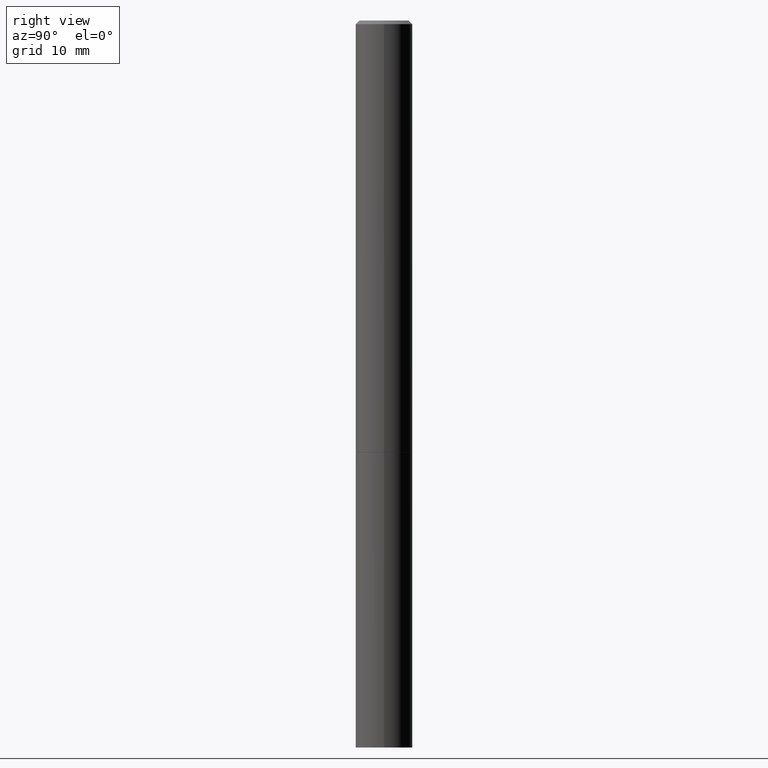
[diagram: clean part render]
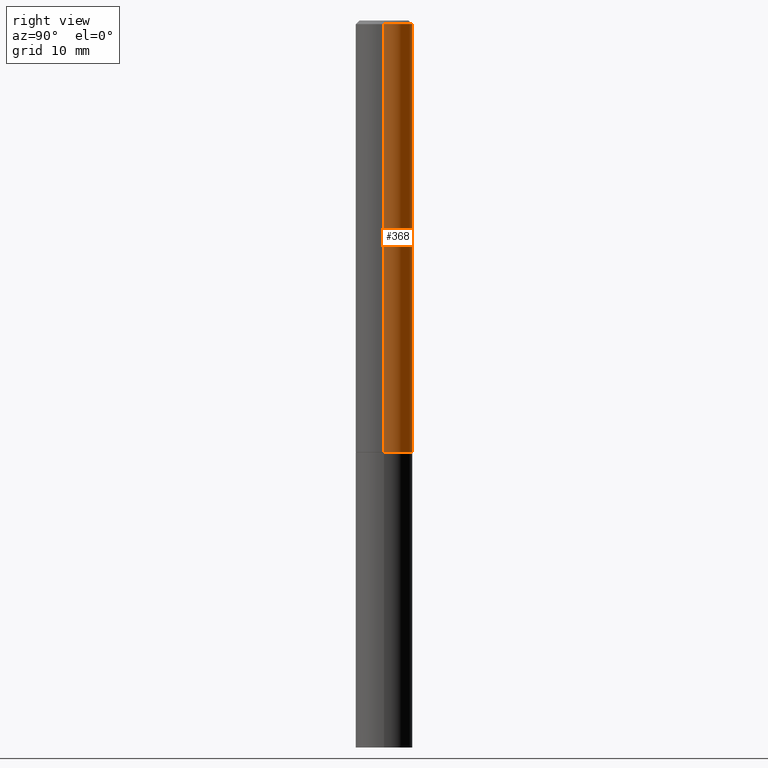
[diagram: same view with one face highlighted and labeled with its STEP entity id]
A machine part, right view. The second image highlights one B-rep face of the part: STEP entity #368.
In plain terms, the highlighted cylindrical surface (edge-blend (fillet) strip) has radius 3.9687 mm, axis along (-0, 0, 1).
Its self-contained STEP definition (entity closure, byte-faithful):
#24 = VERTEX_POINT ( 'NONE', #372 ) ;
#28 = ORIENTED_EDGE ( 'NONE', *, *, #92, .F. ) ;
#36 = CARTESIAN_POINT ( 'NONE',  ( -0.1562499999999998612, 1.110223024625155554E-15, -7.685836078523284153E-30 ) ) ;
#54 = VECTOR ( 'NONE', #290, 39.37007874015748143 ) ;
#67 = DIRECTION ( 'NONE',  ( 1.000000000000000000, -6.982962677686262766E-15, 0.000000000000000000 ) ) ;
#69 = DIRECTION ( 'NONE',  ( -2.445468806185136597E-29, 3.491481338843145583E-15, 1.000000000000000000 ) ) ;
#78 = DIRECTION ( 'NONE',  ( -2.445468806185136877E-29, 3.491481338843145188E-15, 1.000000000000000000 ) ) ;
#82 = LINE ( 'NONE', #199, #54 ) ;
#83 = VECTOR ( 'NONE', #78, 39.37007874015748143 ) ;
#92 = EDGE_CURVE ( 'NONE', #269, #24, #322, .T. ) ;
#103 = DIRECTION ( 'NONE',  ( -2.445468806185136597E-29, 3.491481338843145583E-15, 1.000000000000000000 ) ) ;
#124 = EDGE_LOOP ( 'NONE', ( #389, #168, #28, #387 ) ) ;
#126 = CARTESIAN_POINT ( 'NONE',  ( 0.000000000000000000, 0.000000000000000000, 0.000000000000000000 ) ) ;
#164 = AXIS2_PLACEMENT_3D ( 'NONE', #254, #69, #67 ) ;
#168 = ORIENTED_EDGE ( 'NONE', *, *, #276, .T. ) ;
#180 = AXIS2_PLACEMENT_3D ( 'NONE', #126, #219, #242 ) ;
#190 = EDGE_CURVE ( 'NONE', #384, #269, #82, .T. ) ;
#193 = CARTESIAN_POINT ( 'NONE',  ( 0.1562500000000000000, -9.379864616802105495E-15, -2.373999999999999666 ) ) ;
#199 = CARTESIAN_POINT ( 'NONE',  ( 0.1562499999999998612, -1.091087918388478187E-15, 7.619026212181143371E-30 ) ) ;
#219 = DIRECTION ( 'NONE',  ( -2.445468806185136597E-29, 3.491481338843145583E-15, 1.000000000000000000 ) ) ;
#225 = CARTESIAN_POINT ( 'NONE',  ( -0.1562500000000000000, -3.069080137970085114E-15, -2.373999999999999666 ) ) ;
#242 = DIRECTION ( 'NONE',  ( 1.000000000000000000, -6.982962677686266711E-15, 4.876176775795936353E-29 ) ) ;
#245 = LINE ( 'NONE', #36, #83 ) ;
#254 = CARTESIAN_POINT ( 'NONE',  ( 5.805542945883513814E-29, -8.288776698413627111E-15, -2.373999999999999666 ) ) ;
#269 = VERTEX_POINT ( 'NONE', #369 ) ;
#276 = EDGE_CURVE ( 'NONE', #327, #24, #245, .T. ) ;
#280 = DIRECTION ( 'NONE',  ( 1.000000000000000000, -6.982962677686267499E-15, 0.000000000000000000 ) ) ;
#281 = FACE_OUTER_BOUND ( 'NONE', #124, .T. ) ;
#290 = DIRECTION ( 'NONE',  ( -2.445468806185136877E-29, 3.491481338843145188E-15, 1.000000000000000000 ) ) ;
#302 = EDGE_CURVE ( 'NONE', #384, #327, #354, .T. ) ;
#307 = CYLINDRICAL_SURFACE ( 'NONE', #180, 0.1562499999999998612 ) ;
#322 = CIRCLE ( 'NONE', #351, 0.1562499999999997224 ) ;
#327 = VERTEX_POINT ( 'NONE', #225 ) ;
#338 = CARTESIAN_POINT ( 'NONE',  ( 4.890937612370281041E-31, -6.982962677686302702E-17, -0.02000000000000003511 ) ) ;
#351 = AXIS2_PLACEMENT_3D ( 'NONE', #338, #103, #280 ) ;
#354 = CIRCLE ( 'NONE', #164, 0.1562500000000000000 ) ;
#368 = ADVANCED_FACE ( 'NONE', ( #281 ), #307, .T. ) ;
#369 = CARTESIAN_POINT ( 'NONE',  ( 0.1562499999999997224, -1.141782438928662935E-15, -0.02000000000000003511 ) ) ;
#372 = CARTESIAN_POINT ( 'NONE',  ( -0.1562499999999997224, 1.021258291611614298E-15, -0.02000000000000003511 ) ) ;
#384 = VERTEX_POINT ( 'NONE', #193 ) ;
#387 = ORIENTED_EDGE ( 'NONE', *, *, #190, .F. ) ;
#389 = ORIENTED_EDGE ( 'NONE', *, *, #302, .T. ) ;